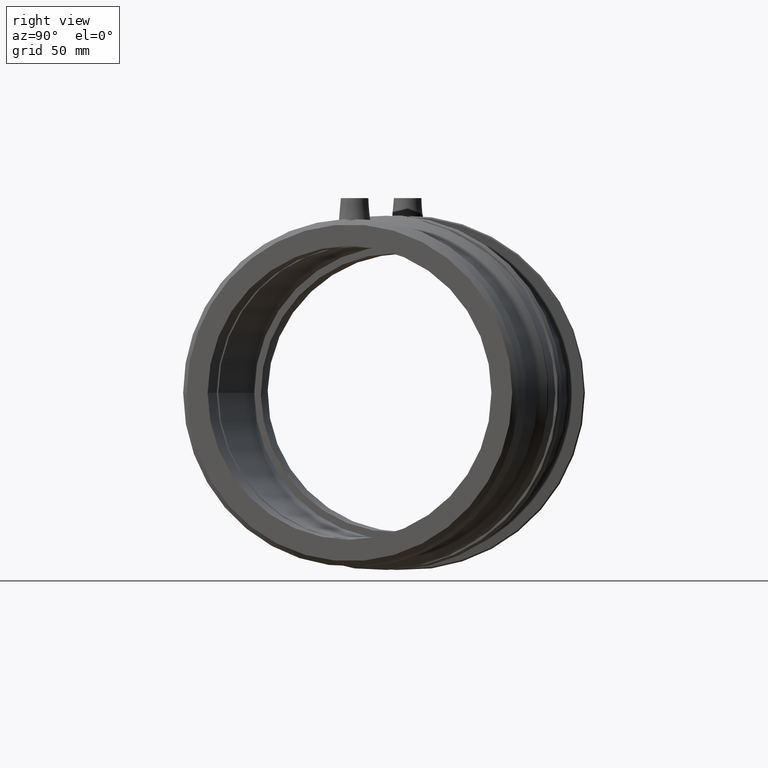
[diagram: clean part render]
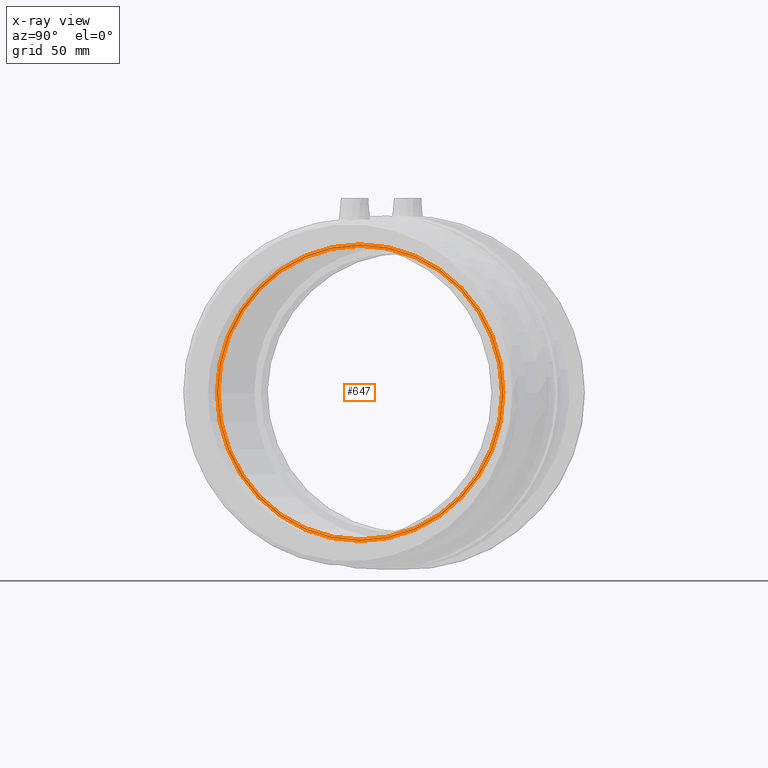
[diagram: x-ray — body ghosted, one internal face saturated and labeled with its STEP entity id]
A machine part, right view, then the same camera in x-ray: the body is ghosted and one INTERNAL B-rep face — a face not visible from any outside direction — is saturated and labeled: STEP entity #647.
In plain terms, the highlighted planar face has unit normal (0.9659, -0.2588, 0).
Its self-contained STEP definition (entity closure, byte-faithful):
#60=PLANE('',#735);
#96=FACE_BOUND('',#237,.T.);
#151=FACE_OUTER_BOUND('',#236,.T.);
#236=EDGE_LOOP('',(#534));
#237=EDGE_LOOP('',(#535));
#290=CIRCLE('',#679,80.);
#317=CIRCLE('',#736,80.7494576343525);
#342=VERTEX_POINT('',#1013);
#374=VERTEX_POINT('',#1439);
#402=EDGE_CURVE('',#342,#342,#290,.T.);
#437=EDGE_CURVE('',#374,#374,#317,.T.);
#534=ORIENTED_EDGE('',*,*,#437,.F.);
#535=ORIENTED_EDGE('',*,*,#402,.T.);
#647=ADVANCED_FACE('',(#151,#96),#60,.T.);
#679=AXIS2_PLACEMENT_3D('',#1014,#793,#794);
#735=AXIS2_PLACEMENT_3D('',#1438,#905,#906);
#736=AXIS2_PLACEMENT_3D('',#1440,#907,#908);
#793=DIRECTION('center_axis',(-0.965925826289068,0.258819045102521,0.));
#794=DIRECTION('ref_axis',(0.258819045102521,0.965925826289068,0.));
#905=DIRECTION('center_axis',(0.965925826289068,-0.258819045102521,0.));
#906=DIRECTION('ref_axis',(0.,0.,1.));
#907=DIRECTION('center_axis',(-0.965925826289068,0.258819045102521,0.));
#908=DIRECTION('ref_axis',(0.,0.,-1.));
#1013=CARTESIAN_POINT('',(75.9810848649011,-103.181164762398,9.79717439317883E-15));
#1014=CARTESIAN_POINT('Origin',(96.6866084731028,-25.9070986592721,0.));
#1438=CARTESIAN_POINT('Origin',(75.7871109556332,-103.905085247128,0.));
#1439=CARTESIAN_POINT('',(75.7871109556332,-103.905085247128,0.));
#1440=CARTESIAN_POINT('Origin',(96.6866084731028,-25.9070986592721,0.));